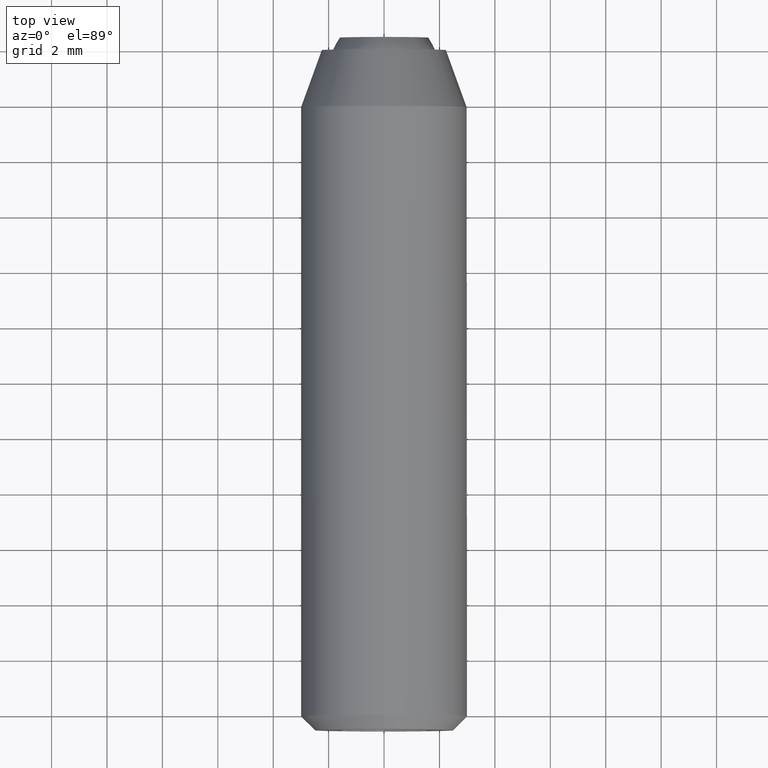
[diagram: clean part render]
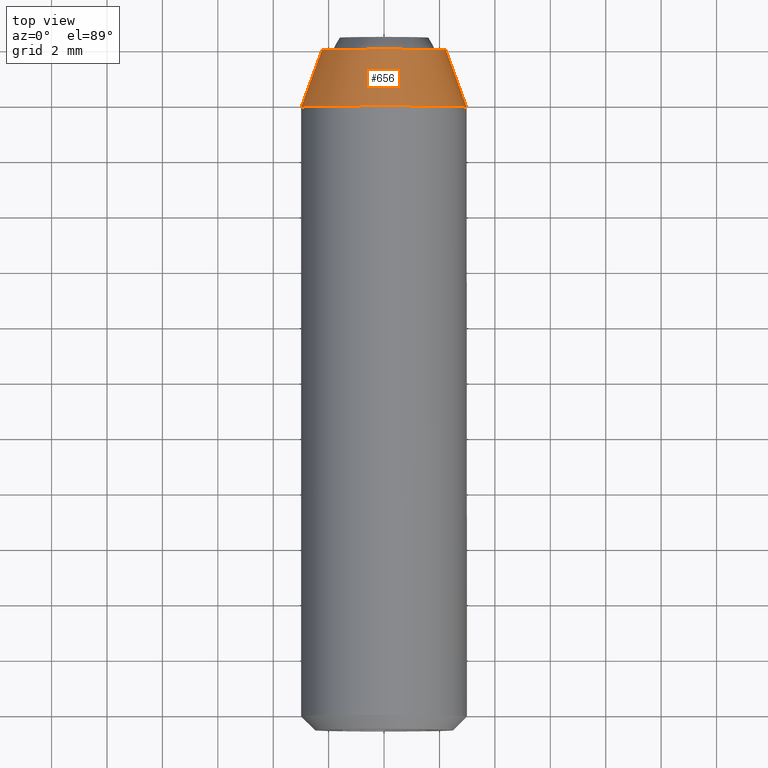
[diagram: same view with one face highlighted and labeled with its STEP entity id]
A machine part, top view. The second image highlights one B-rep face of the part: STEP entity #656.
In plain terms, the highlighted face is a freeform B-spline surface patch.
Its self-contained STEP definition (entity closure, byte-faithful):
#460=CARTESIAN_POINT('',(1.054853923177952,-2.060608000000000,2.808430736328756));
#461=VERTEX_POINT('',#460);
#462=CARTESIAN_POINT('',(0.0,-2.060608000000000,3.0));
#463=VERTEX_POINT('',#462);
#464=CARTESIAN_POINT('',(1.054853923177952,-2.060608000000000,2.808430736328756));
#465=CARTESIAN_POINT('',(0.544822158203853,-2.060608000000000,3.000000000000000));
#466=CARTESIAN_POINT('',(0.0,-2.060608000000000,3.0));
#474=(BOUNDED_CURVE()B_SPLINE_CURVE(2,(#464,#465,#466),.UNSPECIFIED.,.F.,.U.)B_SPLINE_CURVE_WITH_KNOTS((3,3),(0.440284170898545,0.500000000000000),.UNSPECIFIED.)CURVE()GEOMETRIC_REPRESENTATION_ITEM()RATIONAL_B_SPLINE_CURVE((0.893499554635320,0.930038554401444,1.0))REPRESENTATION_ITEM(''));
#475=EDGE_CURVE('',#461,#463,#474,.T.);
#477=CARTESIAN_POINT('',(-2.994404181319607,-2.060606530119079,0.183144734762803));
#478=VERTEX_POINT('',#477);
#479=CARTESIAN_POINT('',(0.0,-2.060608000000000,3.0));
#480=CARTESIAN_POINT('',(-2.822118886340415,-2.060607265059540,2.999999991834673));
#481=CARTESIAN_POINT('',(-2.994404181319607,-2.060606530119080,0.183144734762803));
#489=(BOUNDED_CURVE()B_SPLINE_CURVE(2,(#479,#480,#481),.UNSPECIFIED.,.F.,.U.)B_SPLINE_CURVE_WITH_KNOTS((3,3),(0.500000000000000,0.739333012230629),.UNSPECIFIED.)CURVE()GEOMETRIC_REPRESENTATION_ITEM()RATIONAL_B_SPLINE_CURVE((1.0,0.719603934717807,0.976072148808440))REPRESENTATION_ITEM(''));
#490=EDGE_CURVE('',#463,#478,#489,.T.);
#530=CARTESIAN_POINT('',(2.979028579089626,-2.060608000005122,-0.354102703997646));
#531=VERTEX_POINT('',#530);
#532=CARTESIAN_POINT('',(2.979028579089626,-2.060608000005121,-0.354102703997646));
#533=CARTESIAN_POINT('',(3.000000000000000,-2.060608000000000,-0.177672358983168));
#534=CARTESIAN_POINT('',(3.0,-2.060608000000000,-1.683834E-016));
#535=CARTESIAN_POINT('',(3.000000000000000,-2.060607999999999,2.077828787078143));
#536=CARTESIAN_POINT('',(1.054853923177952,-2.060608000000001,2.808430736328757));
#544=(BOUNDED_CURVE()B_SPLINE_CURVE(2,(#532,#533,#534,#535,#536),.UNSPECIFIED.,.F.,.U.)B_SPLINE_CURVE_WITH_KNOTS((3,2,3),(0.229562473512564,0.250000000000000,0.440284170898545),.UNSPECIFIED.)CURVE()GEOMETRIC_REPRESENTATION_ITEM()RATIONAL_B_SPLINE_CURVE((0.956026754181848,0.976055948330038,1.0,0.777068226785104,0.893499554635320))REPRESENTATION_ITEM(''));
#545=EDGE_CURVE('',#531,#461,#544,.T.);
#585=CARTESIAN_POINT('',(2.215652505698930,0.051515200000000,-0.263363886077892));
#586=CARTESIAN_POINT('',(2.223189866969700,0.051515200000000,-0.199952863273488));
#587=CARTESIAN_POINT('',(2.227088268978790,0.051515200000000,-0.136214553837150));
#588=CARTESIAN_POINT('',(2.363302822815940,0.051515200000000,2.090873715141639));
#589=CARTESIAN_POINT('',(0.136214553837150,0.051515200000000,2.227088268978790));
#590=CARTESIAN_POINT('',(-2.090873715141639,0.051515200000000,2.363302822815939));
#591=CARTESIAN_POINT('',(-2.227088268978790,0.051515200000000,0.136214553837150));
#592=CARTESIAN_POINT('',(2.998112980925805,-2.113411080000001,-0.356371174417586));
#593=CARTESIAN_POINT('',(3.008312170830224,-2.113411080000000,-0.270566468979945));
#594=CARTESIAN_POINT('',(3.013587298422775,-2.113411080000000,-0.184318895223757));
#595=CARTESIAN_POINT('',(3.197906193646531,-2.113411080000000,2.829268403199018));
#596=CARTESIAN_POINT('',(0.184318895223757,-2.113411080000000,3.013587298422775));
#597=CARTESIAN_POINT('',(-2.829268403199018,-2.113411080000000,3.197906193646531));
#598=CARTESIAN_POINT('',(-3.013587298422775,-2.113411080000000,0.184318895223757));
#606=(BOUNDED_SURFACE()B_SPLINE_SURFACE(2,1,((#585,#592),(#586,#593),(#587,#594),(#588,#595),(#589,#596),(#590,#597),(#591,#598)),.UNSPECIFIED.,.F.,.F.,.U.)B_SPLINE_SURFACE_WITH_KNOTS((3,2,2,3),(2,2),(0.0,0.200096216643384,5.202501632727962,10.204907048812540),(0.0,2.303866434672638),.UNSPECIFIED.)GEOMETRIC_REPRESENTATION_ITEM()RATIONAL_B_SPLINE_SURFACE(((0.977505800795127,0.977505800795127),(0.988284271247462,0.988284271247462),(1.0,1.0),(0.707106781186548,0.707106781186548),(1.0,1.0),(0.707106781186548,0.707106781186548),(1.0,1.0)))REPRESENTATION_ITEM('')SURFACE());
#607=ORIENTED_EDGE('',*,*,#545,.F.);
#608=CARTESIAN_POINT('',(2.234271434317917,-1.242690E-012,-0.265577027984335));
#609=VERTEX_POINT('',#608);
#610=CARTESIAN_POINT('',(2.234271434317917,-1.242690E-012,-0.265577027984335));
#611=CARTESIAN_POINT('',(2.979028579089626,-2.060608000005122,-0.354102703997646));
#612=QUASI_UNIFORM_CURVE('',1,(#610,#611),.UNSPECIFIED.,.F.,.U.);
#613=EDGE_CURVE('',#609,#531,#612,.T.);
#614=ORIENTED_EDGE('',*,*,#613,.F.);
#615=CARTESIAN_POINT('',(0.0,0.0,2.250000000000000));
#616=VERTEX_POINT('',#615);
#617=CARTESIAN_POINT('',(2.234271434317918,-1.242690E-012,-0.265577027984335));
#618=CARTESIAN_POINT('',(2.250000000000000,0.0,-0.133254269223442));
#619=CARTESIAN_POINT('',(2.250000000000000,0.0,-1.683834E-016));
#620=CARTESIAN_POINT('',(2.250000000000000,0.0,2.250000000000000));
#621=CARTESIAN_POINT('',(0.0,0.0,2.250000000000000));
#629=(BOUNDED_CURVE()B_SPLINE_CURVE(2,(#617,#618,#619,#620,#621),.UNSPECIFIED.,.F.,.U.)B_SPLINE_CURVE_WITH_KNOTS((3,2,3),(0.229562473514650,0.250000000000000,0.500000000000000),.UNSPECIFIED.)CURVE()GEOMETRIC_REPRESENTATION_ITEM()RATIONAL_B_SPLINE_CURVE((0.956026754185936,0.976055948332482,1.0,0.707106781186547,1.0))REPRESENTATION_ITEM(''));
#630=EDGE_CURVE('',#609,#616,#629,.T.);
#631=ORIENTED_EDGE('',*,*,#630,.T.);
#632=CARTESIAN_POINT('',(-2.245803296449272,-2.405406E-012,0.137359213966598));
#633=VERTEX_POINT('',#632);
#634=CARTESIAN_POINT('',(0.0,0.0,2.250000000000000));
#635=CARTESIAN_POINT('',(-2.116588650513048,0.0,2.250000000000000));
#636=CARTESIAN_POINT('',(-2.245803296449272,-2.405406E-012,0.137359213966598));
#644=(BOUNDED_CURVE()B_SPLINE_CURVE(2,(#634,#635,#636),.UNSPECIFIED.,.F.,.U.)B_SPLINE_CURVE_WITH_KNOTS((3,3),(0.500000000000000,0.739332962239953),.UNSPECIFIED.)CURVE()GEOMETRIC_REPRESENTATION_ITEM()RATIONAL_B_SPLINE_CURVE((1.0,0.719603993285526,0.976072041668883))REPRESENTATION_ITEM(''));
#645=EDGE_CURVE('',#616,#633,#644,.T.);
#646=ORIENTED_EDGE('',*,*,#645,.T.);
#647=CARTESIAN_POINT('',(-2.245803296449272,-2.405406E-012,0.137359213966598));
#648=CARTESIAN_POINT('',(-2.994404181319607,-2.060606530119079,0.183144734762803));
#649=QUASI_UNIFORM_CURVE('',1,(#647,#648),.UNSPECIFIED.,.F.,.U.);
#650=EDGE_CURVE('',#633,#478,#649,.T.);
#651=ORIENTED_EDGE('',*,*,#650,.T.);
#652=ORIENTED_EDGE('',*,*,#490,.F.);
#653=ORIENTED_EDGE('',*,*,#475,.F.);
#654=EDGE_LOOP('',(#607,#614,#631,#646,#651,#652,#653));
#655=FACE_OUTER_BOUND('',#654,.T.);
#656=ADVANCED_FACE('',(#655),#606,.T.);